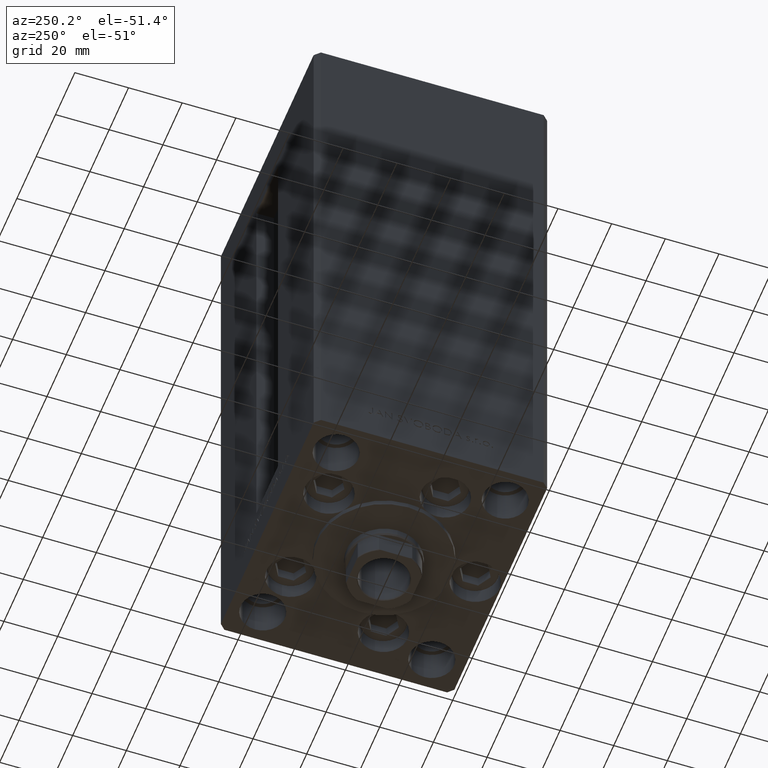
[diagram: clean part render]
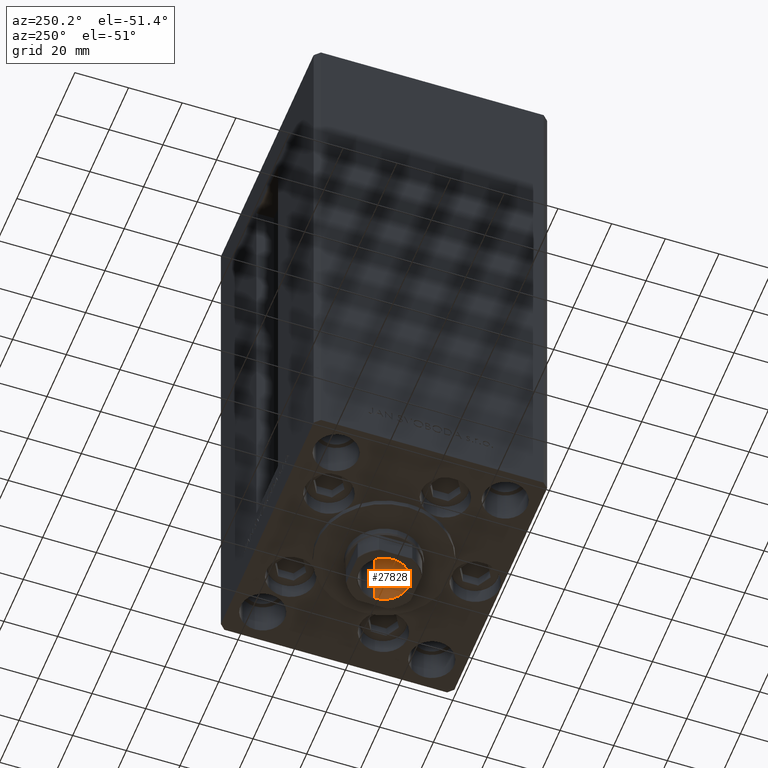
[diagram: same view with one face highlighted and labeled with its STEP entity id]
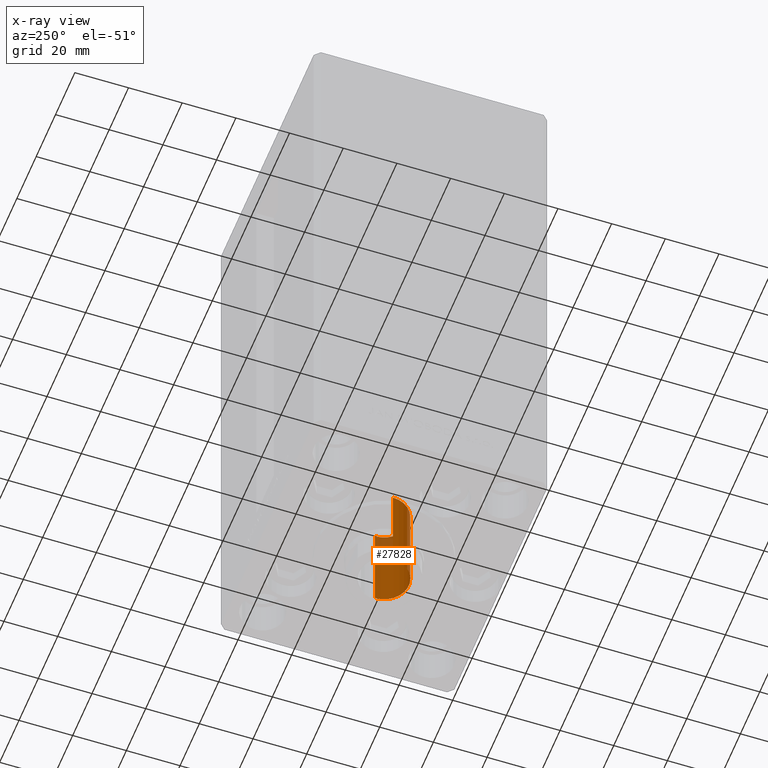
[diagram: x-ray of the same camera — body ghosted, the highlighted face saturated]
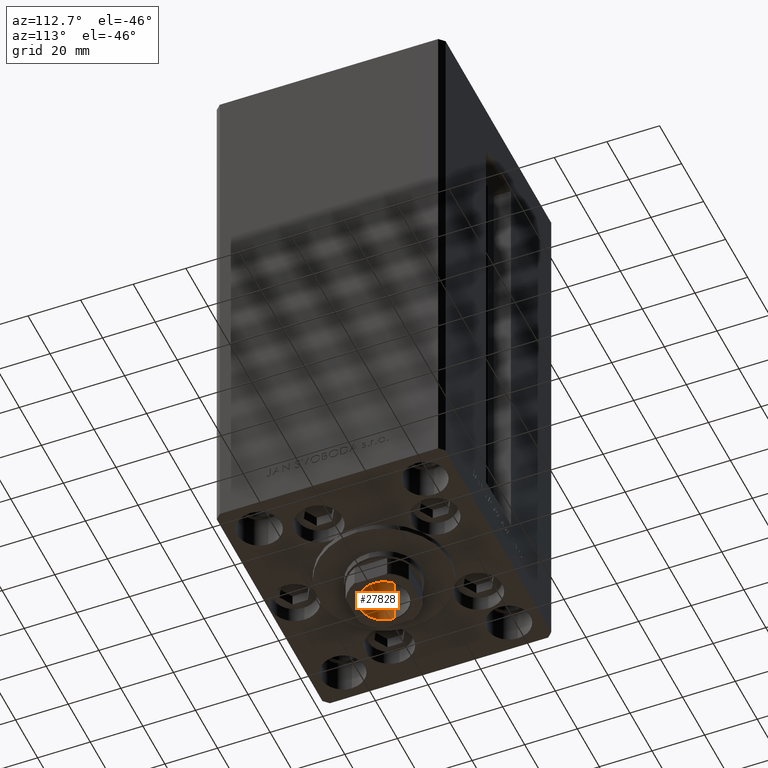
[diagram: same view with one face highlighted and labeled with its STEP entity id]
A machine part, auxiliary view. The second image highlights one B-rep face of the part: STEP entity #27828.
The next image is the same camera in x-ray: the body ghosted, the highlighted face saturated — about 14% of this face is hidden behind the body in this view.
A second angle (auxiliary view) of the same face is appended — the face is thin or edge-on in the first view.
In plain terms, the highlighted cylindrical surface (edge-blend (fillet) strip) has radius 9.25 mm, axis along (0, 0, -1).
Its self-contained STEP definition (entity closure, byte-faithful):
#171 = CARTESIAN_POINT ( 'NONE',  ( -9.249999999999996447, 1.132798289211301304E-15, 185.2500000000000000 ) ) ;
#442 = EDGE_LOOP ( 'NONE', ( #39917, #34879, #14327, #566 ) ) ;
#566 = ORIENTED_EDGE ( 'NONE', *, *, #47788, .F. ) ;
#2058 = CARTESIAN_POINT ( 'NONE',  ( 9.249999999999994671, 0.000000000000000000, 150.2500000000000000 ) ) ;
#2819 = DIRECTION ( 'NONE',  ( 1.000000000000000000, 0.000000000000000000, 0.000000000000000000 ) ) ;
#4500 = DIRECTION ( 'NONE',  ( -0.000000000000000000, -0.000000000000000000, 1.000000000000000000 ) ) ;
#6487 = CIRCLE ( 'NONE', #22409, 9.249999999999996447 ) ;
#8227 = LINE ( 'NONE', #14965, #33428 ) ;
#8608 = VECTOR ( 'NONE', #37251, 1000.000000000000000 ) ;
#9440 = VERTEX_POINT ( 'NONE', #30817 ) ;
#9986 = FACE_OUTER_BOUND ( 'NONE', #442, .T. ) ;
#10294 = CARTESIAN_POINT ( 'NONE',  ( 0.000000000000000000, 0.000000000000000000, 184.9499999999999602 ) ) ;
#11116 = LINE ( 'NONE', #171, #8608 ) ;
#12294 = VERTEX_POINT ( 'NONE', #20674 ) ;
#13204 = VERTEX_POINT ( 'NONE', #2058 ) ;
#14327 = ORIENTED_EDGE ( 'NONE', *, *, #27547, .T. ) ;
#14965 = CARTESIAN_POINT ( 'NONE',  ( 9.249999999999996447, 0.000000000000000000, 185.2500000000000000 ) ) ;
#15218 = AXIS2_PLACEMENT_3D ( 'NONE', #43575, #36856, #21447 ) ;
#15377 = CARTESIAN_POINT ( 'NONE',  ( 0.000000000000000000, 0.000000000000000000, 150.2500000000000000 ) ) ;
#16354 = DIRECTION ( 'NONE',  ( 1.000000000000000000, 0.000000000000000000, 0.000000000000000000 ) ) ;
#20090 = EDGE_CURVE ( 'NONE', #47458, #9440, #11116, .T. ) ;
#20674 = CARTESIAN_POINT ( 'NONE',  ( 9.249999999999996447, 0.000000000000000000, 184.9499999999999602 ) ) ;
#21276 = AXIS2_PLACEMENT_3D ( 'NONE', #15377, #38754, #16354 ) ;
#21447 = DIRECTION ( 'NONE',  ( 1.000000000000000000, 0.000000000000000000, 0.000000000000000000 ) ) ;
#22409 = AXIS2_PLACEMENT_3D ( 'NONE', #10294, #48349, #2819 ) ;
#26730 = CARTESIAN_POINT ( 'NONE',  ( -9.249999999999994671, 1.132798289211300909E-15, 150.2500000000000000 ) ) ;
#27547 = EDGE_CURVE ( 'NONE', #9440, #12294, #6487, .T. ) ;
#27828 = ADVANCED_FACE ( 'NONE', ( #9986 ), #36614, .F. ) ;
#30817 = CARTESIAN_POINT ( 'NONE',  ( -9.249999999999996447, 1.132798289211301304E-15, 184.9499999999999602 ) ) ;
#33428 = VECTOR ( 'NONE', #4500, 1000.000000000000000 ) ;
#34879 = ORIENTED_EDGE ( 'NONE', *, *, #20090, .T. ) ;
#36614 = CYLINDRICAL_SURFACE ( 'NONE', #15218, 9.249999999999996447 ) ;
#36856 = DIRECTION ( 'NONE',  ( -0.000000000000000000, -0.000000000000000000, 1.000000000000000000 ) ) ;
#37193 = EDGE_CURVE ( 'NONE', #47458, #13204, #45137, .T. ) ;
#37251 = DIRECTION ( 'NONE',  ( -0.000000000000000000, -0.000000000000000000, 1.000000000000000000 ) ) ;
#38754 = DIRECTION ( 'NONE',  ( -0.000000000000000000, -0.000000000000000000, 1.000000000000000000 ) ) ;
#39917 = ORIENTED_EDGE ( 'NONE', *, *, #37193, .F. ) ;
#43575 = CARTESIAN_POINT ( 'NONE',  ( 0.000000000000000000, 0.000000000000000000, 185.2500000000000000 ) ) ;
#45137 = CIRCLE ( 'NONE', #21276, 9.249999999999994671 ) ;
#47458 = VERTEX_POINT ( 'NONE', #26730 ) ;
#47788 = EDGE_CURVE ( 'NONE', #13204, #12294, #8227, .T. ) ;
#48349 = DIRECTION ( 'NONE',  ( 0.000000000000000000, 0.000000000000000000, 1.000000000000000000 ) ) ;